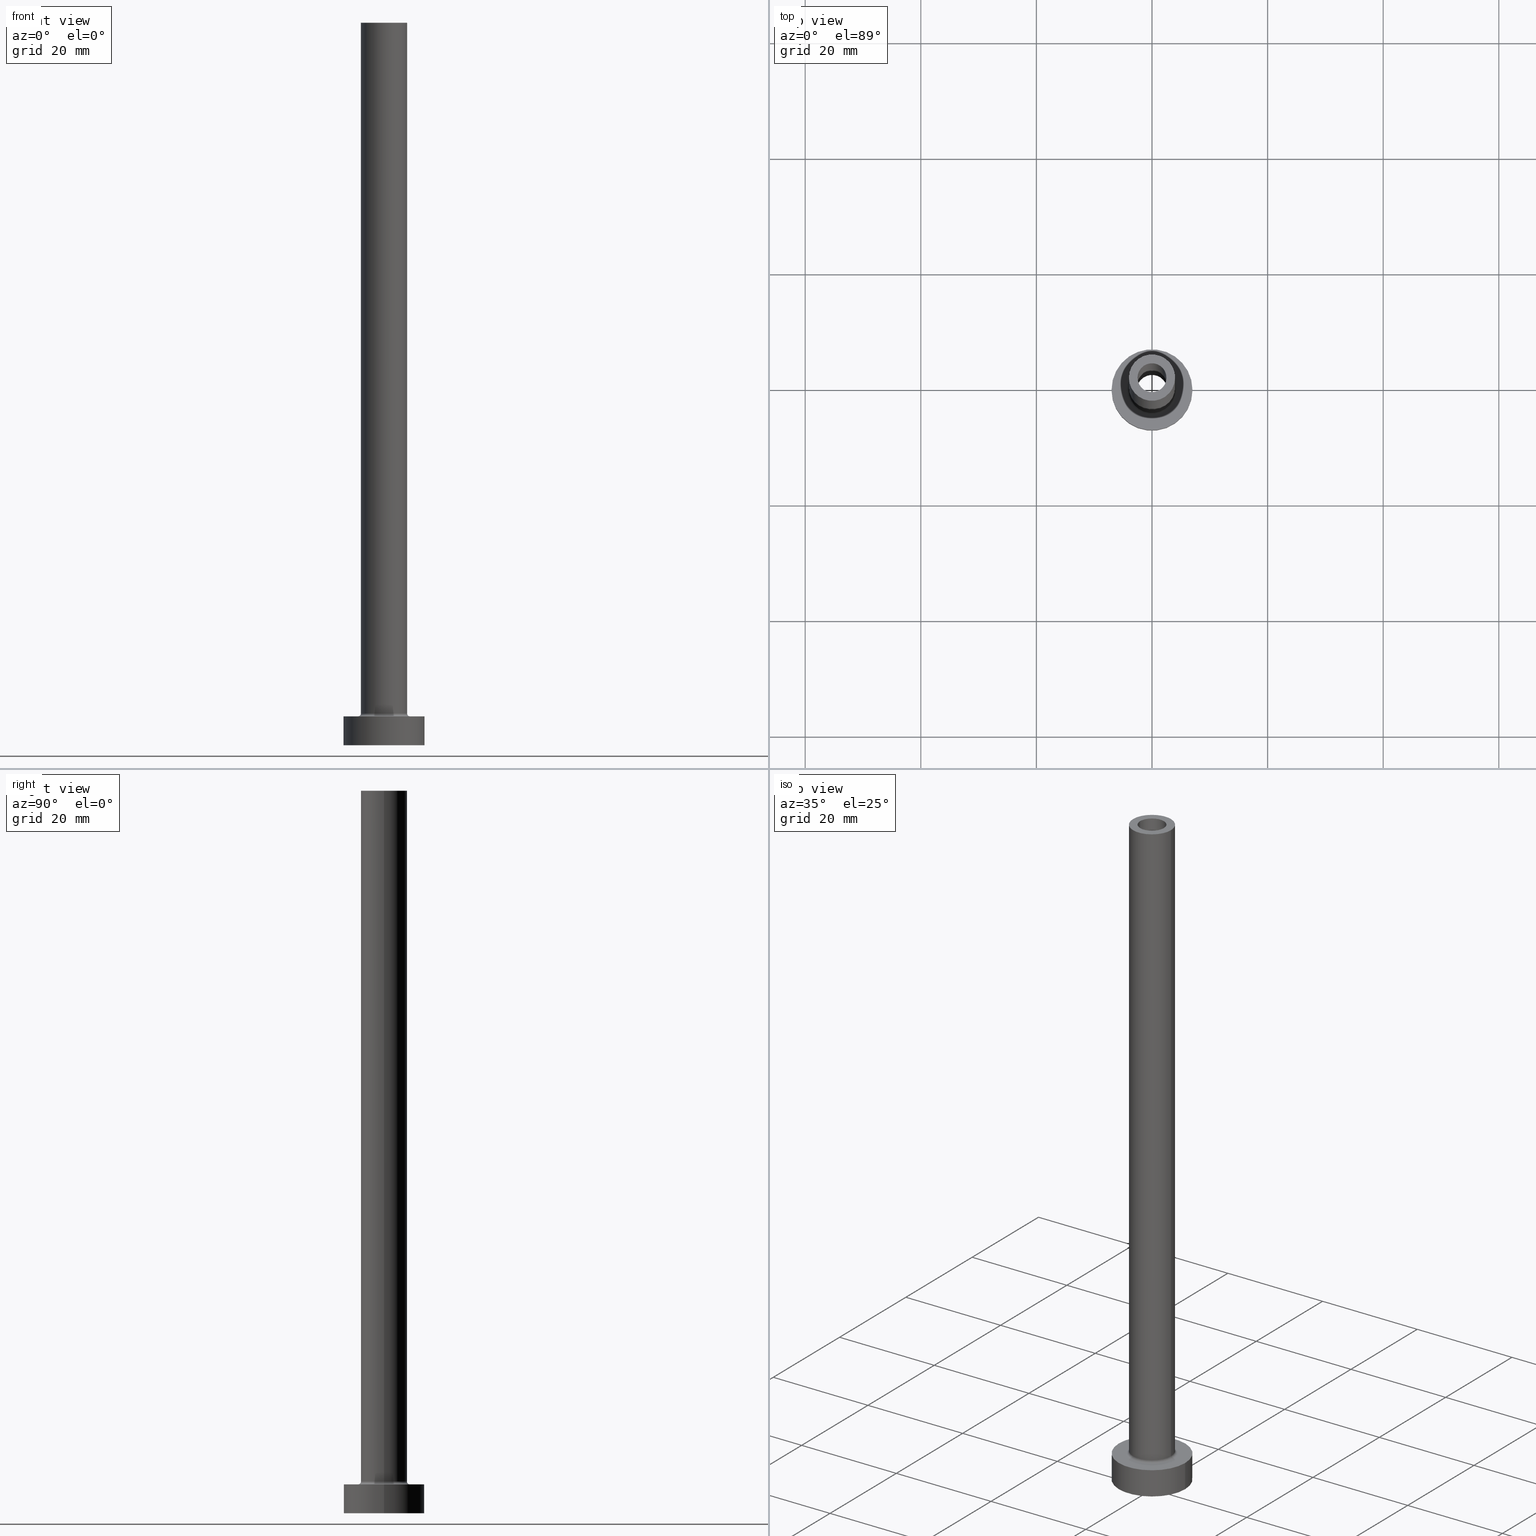
[diagram: canonical four-view strip — front | top / right | iso, engineering-drawing reading convention]
A machine part, canonical four-view strip (front | top / right | iso — engineering-drawing reading convention). The complete STEP part file that produces these views, byte-faithful:
ISO-10303-21;
HEADER;
FILE_DESCRIPTION (( 'STEP AP203' ),
    '1' );
FILE_NAME ('b917.STEP',
    '2023-02-13T10:13:58',
    ( '' ),
    ( '' ),
    'SwSTEP 2.0',
    'SolidWorks 2019',
    '' );
FILE_SCHEMA (( 'CONFIG_CONTROL_DESIGN' ));
ENDSEC;

DATA;
#1 = CC_DESIGN_DATE_AND_TIME_ASSIGNMENT ( #72, #384, ( #71 ) ) ;
#2 = DIRECTION ( 'NONE',  ( 1.000000000000000000, 0.000000000000000000, -0.000000000000000000 ) ) ;
#3 = VECTOR ( 'NONE', #244, 1000.000000000000000 ) ;
#4 = DIRECTION ( 'NONE',  ( 1.000000000000000000, 0.000000000000000000, 0.000000000000000000 ) ) ;
#5 = ORIENTED_EDGE ( 'NONE', *, *, #336, .T. ) ;
#6 = LINE ( 'NONE', #282, #92 ) ;
#7 = ORIENTED_EDGE ( 'NONE', *, *, #80, .T. ) ;
#8 = DIRECTION ( 'NONE',  ( 0.000000000000000000, 0.000000000000000000, -1.000000000000000000 ) ) ;
#9 = ORIENTED_EDGE ( 'NONE', *, *, #172, .T. ) ;
#10 = PRODUCT_RELATED_PRODUCT_CATEGORY ( 'detail', '', ( #132 ) ) ;
#11 = CIRCLE ( 'NONE', #403, 2.500000000000000000 ) ;
#12 = DIRECTION ( 'NONE',  ( -1.000000000000000000, 1.224646799147351482E-16, 0.000000000000000000 ) ) ;
#13 = AXIS2_PLACEMENT_3D ( 'NONE', #165, #379, #161 ) ;
#14 = ORIENTED_EDGE ( 'NONE', *, *, #271, .T. ) ;
#15 = CC_DESIGN_PERSON_AND_ORGANIZATION_ASSIGNMENT ( #369, #56, ( #113 ) ) ;
#16 = FACE_OUTER_BOUND ( 'NONE', #337, .T. ) ;
#17 = ORIENTED_EDGE ( 'NONE', *, *, #254, .F. ) ;
#18 = PERSON_AND_ORGANIZATION ( #457, #243 ) ;
#19 = DIRECTION ( 'NONE',  ( 0.000000000000000000, 0.000000000000000000, -1.000000000000000000 ) ) ;
#20 = CIRCLE ( 'NONE', #105, 2.649999999999999911 ) ;
#21 = FACE_OUTER_BOUND ( 'NONE', #449, .T. ) ;
#22 = LOCAL_TIME ( 11, 13, 58.00000000000000000, #301 ) ;
#23 =( NAMED_UNIT ( * ) PLANE_ANGLE_UNIT ( ) SI_UNIT ( $, .RADIAN. ) );
#24 = ORIENTED_EDGE ( 'NONE', *, *, #445, .F. ) ;
#25 = ADVANCED_FACE ( 'NONE', ( #262 ), #299, .T. ) ;
#26 = CARTESIAN_POINT ( 'NONE',  ( 0.000000000000000000, 0.000000000000000000, 80.00000000000000000 ) ) ;
#27 = PERSON_AND_ORGANIZATION ( #457, #243 ) ;
#28 = DIRECTION ( 'NONE',  ( 0.000000000000000000, 0.000000000000000000, -1.000000000000000000 ) ) ;
#29 = AXIS2_PLACEMENT_3D ( 'NONE', #269, #101, #169 ) ;
#30 = CIRCLE ( 'NONE', #304, 2.500000000000000000 ) ;
#31 = EDGE_CURVE ( 'NONE', #332, #444, #306, .T. ) ;
#32 = DIRECTION ( 'NONE',  ( 1.000000000000000000, 0.000000000000000000, 0.000000000000000000 ) ) ;
#33 = CARTESIAN_POINT ( 'NONE',  ( 0.000000000000000000, 0.000000000000000000, 125.0000000000000000 ) ) ;
#34 = COORDINATED_UNIVERSAL_TIME_OFFSET ( 1, 0, .AHEAD. ) ;
#35 = DIRECTION ( 'NONE',  ( 1.000000000000000000, 0.000000000000000000, 0.000000000000000000 ) ) ;
#36 = ADVANCED_FACE ( 'NONE', ( #21 ), #163, .T. ) ;
#37 = AXIS2_PLACEMENT_3D ( 'NONE', #33, #355, #35 ) ;
#38 = DATE_AND_TIME ( #416, #404 ) ;
#39 = DIRECTION ( 'NONE',  ( 1.000000000000000000, 0.000000000000000000, 0.000000000000000000 ) ) ;
#40 = DIRECTION ( 'NONE',  ( 1.000000000000000000, 0.000000000000000000, 0.000000000000000000 ) ) ;
#41 = FACE_BOUND ( 'NONE', #124, .T. ) ;
#42 = VERTEX_POINT ( 'NONE', #103 ) ;
#43 = AXIS2_PLACEMENT_3D ( 'NONE', #455, #207, #40 ) ;
#44 = CARTESIAN_POINT ( 'NONE',  ( 0.000000000000000000, 0.000000000000000000, 87.49533188057741029 ) ) ;
#45 = EDGE_CURVE ( 'NONE', #158, #402, #223, .T. ) ;
#46 = ORIENTED_EDGE ( 'NONE', *, *, #460, .T. ) ;
#47 = CYLINDRICAL_SURFACE ( 'NONE', #458, 2.649999999999999911 ) ;
#48 = ORIENTED_EDGE ( 'NONE', *, *, #305, .F. ) ;
#49 = CARTESIAN_POINT ( 'NONE',  ( -2.649999999999999911, 0.000000000000000000, 80.00000000000000000 ) ) ;
#50 = ORIENTED_EDGE ( 'NONE', *, *, #172, .F. ) ;
#51 = ADVANCED_FACE ( 'NONE', ( #265 ), #96, .T. ) ;
#52 = CIRCLE ( 'NONE', #345, 7.000000000000000000 ) ;
#53 = CARTESIAN_POINT ( 'NONE',  ( 0.000000000000000000, 0.000000000000000000, 125.0000000000000000 ) ) ;
#54 =( GEOMETRIC_REPRESENTATION_CONTEXT ( 3 ) GLOBAL_UNCERTAINTY_ASSIGNED_CONTEXT ( ( #320 ) ) GLOBAL_UNIT_ASSIGNED_CONTEXT ( ( #376, #23, #406 ) ) REPRESENTATION_CONTEXT ( 'NONE', 'WORKASPACE' ) );
#55 = ORIENTED_EDGE ( 'NONE', *, *, #143, .T. ) ;
#56 = PERSON_AND_ORGANIZATION_ROLE ( 'design_supplier' ) ;
#57 = ORIENTED_EDGE ( 'NONE', *, *, #240, .F. ) ;
#58 = PERSON_AND_ORGANIZATION ( #457, #243 ) ;
#59 = CARTESIAN_POINT ( 'NONE',  ( -7.000000000000000000, 0.000000000000000000, 5.000000000000000000 ) ) ;
#60 = DATE_AND_TIME ( #100, #22 ) ;
#61 = CIRCLE ( 'NONE', #367, 2.500000000000000000 ) ;
#62 = EDGE_CURVE ( 'NONE', #158, #221, #188, .T. ) ;
#63 = ORIENTED_EDGE ( 'NONE', *, *, #275, .F. ) ;
#64 = CYLINDRICAL_SURFACE ( 'NONE', #346, 2.500000000000000000 ) ;
#65 = EDGE_LOOP ( 'NONE', ( #88, #179, #438, #370 ) ) ;
#66 = APPROVAL_DATE_TIME ( #446, #148 ) ;
#67 = ORIENTED_EDGE ( 'NONE', *, *, #275, .T. ) ;
#68 = EDGE_CURVE ( 'NONE', #248, #362, #20, .T. ) ;
#69 = DIRECTION ( 'NONE',  ( 1.000000000000000000, 0.000000000000000000, 0.000000000000000000 ) ) ;
#70 = CIRCLE ( 'NONE', #412, 2.649999999999999911 ) ;
#71 = SECURITY_CLASSIFICATION ( '', '', #192 ) ;
#72 = DATE_AND_TIME ( #441, #83 ) ;
#73 = FACE_OUTER_BOUND ( 'NONE', #65, .T. ) ;
#74 = CARTESIAN_POINT ( 'NONE',  ( 7.000000000000000000, 8.572527594031473190E-16, 5.000000000000000000 ) ) ;
#75 = DIRECTION ( 'NONE',  ( 0.000000000000000000, 0.000000000000000000, 1.000000000000000000 ) ) ;
#76 = AXIS2_PLACEMENT_3D ( 'NONE', #53, #190, #331 ) ;
#77 = DIRECTION ( 'NONE',  ( -0.000000000000000000, -0.000000000000000000, -1.000000000000000000 ) ) ;
#78 = FACE_OUTER_BOUND ( 'NONE', #90, .T. ) ;
#79 = VERTEX_POINT ( 'NONE', #233 ) ;
#80 = EDGE_CURVE ( 'NONE', #260, #79, #432, .T. ) ;
#81 = DIRECTION ( 'NONE',  ( 1.000000000000000000, 0.000000000000000000, 0.000000000000000000 ) ) ;
#82 = ORIENTED_EDGE ( 'NONE', *, *, #271, .F. ) ;
#83 = LOCAL_TIME ( 11, 13, 58.00000000000000000, #293 ) ;
#84 = PLANE ( 'NONE',  #76 ) ;
#85 = ORIENTED_EDGE ( 'NONE', *, *, #240, .T. ) ;
#86 = DIRECTION ( 'NONE',  ( 0.000000000000000000, 0.000000000000000000, -1.000000000000000000 ) ) ;
#87 = EDGE_CURVE ( 'NONE', #290, #332, #456, .T. ) ;
#88 = ORIENTED_EDGE ( 'NONE', *, *, #343, .F. ) ;
#89 = DIRECTION ( 'NONE',  ( 1.000000000000000000, 0.000000000000000000, -0.000000000000000000 ) ) ;
#90 = EDGE_LOOP ( 'NONE', ( #17, #93, #24, #364 ) ) ;
#91 = PERSON_AND_ORGANIZATION ( #457, #243 ) ;
#92 = VECTOR ( 'NONE', #394, 1000.000000000000000 ) ;
#93 = ORIENTED_EDGE ( 'NONE', *, *, #343, .T. ) ;
#94 = FACE_OUTER_BOUND ( 'NONE', #360, .T. ) ;
#95 = LINE ( 'NONE', #227, #3 ) ;
#96 = CYLINDRICAL_SURFACE ( 'NONE', #450, 4.000000000000000000 ) ;
#97 = CIRCLE ( 'NONE', #386, 0.5000000000000004441 ) ;
#98 = DIRECTION ( 'NONE',  ( -0.000000000000000000, -0.000000000000000000, -1.000000000000000000 ) ) ;
#99 = CC_DESIGN_APPROVAL ( #300, ( #71 ) ) ;
#100 = CALENDAR_DATE ( 2023, 13, 2 ) ;
#101 = DIRECTION ( 'NONE',  ( 0.000000000000000000, 0.000000000000000000, 1.000000000000000000 ) ) ;
#102 = CC_DESIGN_PERSON_AND_ORGANIZATION_ASSIGNMENT ( #203, #256, ( #113 ) ) ;
#103 = CARTESIAN_POINT ( 'NONE',  ( -2.649999999999999911, 0.000000000000000000, 0.000000000000000000 ) ) ;
#104 = DIRECTION ( 'NONE',  ( 1.000000000000000000, 0.000000000000000000, 0.000000000000000000 ) ) ;
#105 = AXIS2_PLACEMENT_3D ( 'NONE', #26, #166, #137 ) ;
#106 = TOROIDAL_SURFACE ( 'NONE', #281, 4.500000000000000888, 0.5000000000000000000 ) ;
#107 = DIRECTION ( 'NONE',  ( 0.000000000000000000, 0.000000000000000000, -1.000000000000000000 ) ) ;
#108 = SHAPE_DEFINITION_REPRESENTATION ( #436, #433 ) ;
#109 = EDGE_CURVE ( 'NONE', #187, #79, #381, .T. ) ;
#110 = CARTESIAN_POINT ( 'NONE',  ( 0.000000000000000000, 0.000000000000000000, 5.000000000000000000 ) ) ;
#111 = CARTESIAN_POINT ( 'NONE',  ( 2.500000000000000000, 3.061616997868382648E-16, 125.0000000000000000 ) ) ;
#112 = CIRCLE ( 'NONE', #37, 4.000000000000000000 ) ;
#113 = PRODUCT_DEFINITION_FORMATION_WITH_SPECIFIED_SOURCE ( 'LIBOVOLN�', '', #132, .NOT_KNOWN. ) ;
#114 = FACE_OUTER_BOUND ( 'NONE', #185, .T. ) ;
#115 = DIRECTION ( 'NONE',  ( -0.000000000000000000, -0.000000000000000000, -1.000000000000000000 ) ) ;
#116 = EDGE_LOOP ( 'NONE', ( #255, #373 ) ) ;
#117 = CARTESIAN_POINT ( 'NONE',  ( 0.000000000000000000, 0.000000000000000000, 0.000000000000000000 ) ) ;
#118 = VERTEX_POINT ( 'NONE', #162 ) ;
#119 = CIRCLE ( 'NONE', #418, 2.649999999999999911 ) ;
#120 = EDGE_CURVE ( 'NONE', #248, #428, #95, .T. ) ;
#121 = CARTESIAN_POINT ( 'NONE',  ( 4.500000000000000888, 0.000000000000000000, 5.000000000000002665 ) ) ;
#122 = EDGE_LOOP ( 'NONE', ( #191, #395, #175, #342 ) ) ;
#123 = CARTESIAN_POINT ( 'NONE',  ( 0.000000000000000000, 0.000000000000000000, 80.00000000000000000 ) ) ;
#124 = EDGE_LOOP ( 'NONE', ( #85, #7 ) ) ;
#125 = CARTESIAN_POINT ( 'NONE',  ( 0.000000000000000000, 0.000000000000000000, 5.000000000000000000 ) ) ;
#126 = ORIENTED_EDGE ( 'NONE', *, *, #313, .F. ) ;
#127 = DATE_AND_TIME ( #130, #250 ) ;
#128 = ORIENTED_EDGE ( 'NONE', *, *, #405, .T. ) ;
#129 = ADVANCED_FACE ( 'NONE', ( #73 ), #273, .F. ) ;
#130 = CALENDAR_DATE ( 2023, 13, 2 ) ;
#131 = ORIENTED_EDGE ( 'NONE', *, *, #87, .F. ) ;
#132 = PRODUCT ( 'b917', 'b917', '', ( #401 ) ) ;
#133 = ORIENTED_EDGE ( 'NONE', *, *, #68, .T. ) ;
#134 = CARTESIAN_POINT ( 'NONE',  ( 0.000000000000000000, 0.000000000000000000, 125.0000000000000000 ) ) ;
#135 = APPROVAL ( #451, 'NEUR�EN�' ) ;
#136 = VECTOR ( 'NONE', #279, 1000.000000000000000 ) ;
#137 = DIRECTION ( 'NONE',  ( 1.000000000000000000, 0.000000000000000000, 0.000000000000000000 ) ) ;
#138 = DIRECTION ( 'NONE',  ( 0.000000000000000000, 0.000000000000000000, 1.000000000000000000 ) ) ;
#139 = LINE ( 'NONE', #421, #393 ) ;
#140 = CARTESIAN_POINT ( 'NONE',  ( -4.000000000000000000, 0.000000000000000000, 5.500000000000005329 ) ) ;
#141 = AXIS2_PLACEMENT_3D ( 'NONE', #277, #347, #171 ) ;
#142 = APPROVAL_PERSON_ORGANIZATION ( #352, #300, #276 ) ;
#143 = EDGE_CURVE ( 'NONE', #160, #402, #242, .T. ) ;
#144 = CARTESIAN_POINT ( 'NONE',  ( 0.000000000000000000, 0.000000000000000000, 5.000000000000000000 ) ) ;
#145 = DIRECTION ( 'NONE',  ( 0.000000000000000000, 0.000000000000000000, 1.000000000000000000 ) ) ;
#146 = DESIGN_CONTEXT ( 'detailed design', #231, 'design' ) ;
#147 = CARTESIAN_POINT ( 'NONE',  ( 0.000000000000000000, 0.000000000000000000, 5.000000000000000000 ) ) ;
#148 = APPROVAL ( #414, 'NEUR�EN�' ) ;
#149 = FACE_OUTER_BOUND ( 'NONE', #116, .T. ) ;
#150 = ORIENTED_EDGE ( 'NONE', *, *, #206, .T. ) ;
#151 = CARTESIAN_POINT ( 'NONE',  ( 2.649999999999999911, 3.245314017740485962E-16, 0.000000000000000000 ) ) ;
#152 = ORIENTED_EDGE ( 'NONE', *, *, #305, .T. ) ;
#153 = FACE_BOUND ( 'NONE', #219, .T. ) ;
#154 = ORIENTED_EDGE ( 'NONE', *, *, #419, .T. ) ;
#155 = CIRCLE ( 'NONE', #141, 4.000000000000000000 ) ;
#156 = CIRCLE ( 'NONE', #311, 2.649999999999999911 ) ;
#157 = CARTESIAN_POINT ( 'NONE',  ( 0.000000000000000000, 0.000000000000000000, 0.000000000000000000 ) ) ;
#158 = VERTEX_POINT ( 'NONE', #208 ) ;
#159 = FACE_OUTER_BOUND ( 'NONE', #430, .T. ) ;
#160 = VERTEX_POINT ( 'NONE', #388 ) ;
#161 = DIRECTION ( 'NONE',  ( 1.000000000000000000, 0.000000000000000000, 0.000000000000000000 ) ) ;
#162 = CARTESIAN_POINT ( 'NONE',  ( -4.000000000000000000, 0.000000000000000000, 125.0000000000000000 ) ) ;
#163 = CYLINDRICAL_SURFACE ( 'NONE', #329, 7.000000000000000000 ) ;
#164 = ORIENTED_EDGE ( 'NONE', *, *, #62, .T. ) ;
#165 = CARTESIAN_POINT ( 'NONE',  ( 0.000000000000000000, 0.000000000000000000, 0.000000000000000000 ) ) ;
#166 = DIRECTION ( 'NONE',  ( 0.000000000000000000, 0.000000000000000000, 1.000000000000000000 ) ) ;
#167 = APPLICATION_PROTOCOL_DEFINITION ( 'international standard', 'config_control_design', 1994, #194 ) ;
#168 = VECTOR ( 'NONE', #77, 1000.000000000000000 ) ;
#169 = DIRECTION ( 'NONE',  ( 1.000000000000000000, 0.000000000000000000, 0.000000000000000000 ) ) ;
#170 = CARTESIAN_POINT ( 'NONE',  ( 0.000000000000000000, 0.000000000000000000, 125.0000000000000000 ) ) ;
#171 = DIRECTION ( 'NONE',  ( 1.000000000000000000, 0.000000000000000000, 0.000000000000000000 ) ) ;
#172 = EDGE_CURVE ( 'NONE', #332, #290, #351, .T. ) ;
#173 = LINE ( 'NONE', #312, #136 ) ;
#174 = DIRECTION ( 'NONE',  ( 0.000000000000000000, 0.000000000000000000, 1.000000000000000000 ) ) ;
#175 = ORIENTED_EDGE ( 'NONE', *, *, #201, .T. ) ;
#176 = CC_DESIGN_DATE_AND_TIME_ASSIGNMENT ( #127, #268, ( #210 ) ) ;
#177 = DIRECTION ( 'NONE',  ( -0.000000000000000000, -0.000000000000000000, -1.000000000000000000 ) ) ;
#178 = FACE_OUTER_BOUND ( 'NONE', #257, .T. ) ;
#179 = ORIENTED_EDGE ( 'NONE', *, *, #62, .F. ) ;
#180 = VECTOR ( 'NONE', #426, 1000.000000000000000 ) ;
#181 = LOCAL_TIME ( 11, 13, 58.00000000000000000, #340 ) ;
#182 = FACE_OUTER_BOUND ( 'NONE', #328, .T. ) ;
#183 = ORIENTED_EDGE ( 'NONE', *, *, #263, .F. ) ;
#184 = DIRECTION ( 'NONE',  ( -1.000000000000000000, 0.000000000000000000, 0.000000000000000000 ) ) ;
#185 = EDGE_LOOP ( 'NONE', ( #183, #50, #202, #150 ) ) ;
#186 = DIRECTION ( 'NONE',  ( 1.000000000000000000, 0.000000000000000000, 0.000000000000000000 ) ) ;
#187 = VERTEX_POINT ( 'NONE', #461 ) ;
#188 = CIRCLE ( 'NONE', #215, 4.000000000000000000 ) ;
#189 = AXIS2_PLACEMENT_3D ( 'NONE', #157, #289, #247 ) ;
#190 = DIRECTION ( 'NONE',  ( 0.000000000000000000, 0.000000000000000000, 1.000000000000000000 ) ) ;
#191 = ORIENTED_EDGE ( 'NONE', *, *, #419, .F. ) ;
#192 = SECURITY_CLASSIFICATION_LEVEL ( 'unclassified' ) ;
#193 = CARTESIAN_POINT ( 'NONE',  ( 0.000000000000000000, 0.000000000000000000, 5.000000000000000000 ) ) ;
#194 = APPLICATION_CONTEXT ( 'configuration controlled 3d designs of mechanical parts and assemblies' ) ;
#195 = DIRECTION ( 'NONE',  ( 0.000000000000000000, 0.000000000000000000, 1.000000000000000000 ) ) ;
#196 = ORIENTED_EDGE ( 'NONE', *, *, #120, .T. ) ;
#197 = VECTOR ( 'NONE', #452, 1000.000000000000000 ) ;
#198 = AXIS2_PLACEMENT_3D ( 'NONE', #324, #8, #245 ) ;
#199 = APPROVAL_ROLE ( '' ) ;
#200 = ORIENTED_EDGE ( 'NONE', *, *, #405, .F. ) ;
#201 = EDGE_CURVE ( 'NONE', #118, #221, #173, .T. ) ;
#202 = ORIENTED_EDGE ( 'NONE', *, *, #31, .T. ) ;
#203 = PERSON_AND_ORGANIZATION ( #457, #243 ) ;
#204 = DIRECTION ( 'NONE',  ( -1.000000000000000000, 0.000000000000000000, 0.000000000000000000 ) ) ;
#205 = CARTESIAN_POINT ( 'NONE',  ( 0.000000000000000000, 0.000000000000000000, 80.00000000000000000 ) ) ;
#206 = EDGE_CURVE ( 'NONE', #444, #440, #52, .T. ) ;
#207 = DIRECTION ( 'NONE',  ( 0.000000000000000000, 0.000000000000000000, 1.000000000000000000 ) ) ;
#208 = CARTESIAN_POINT ( 'NONE',  ( 4.000000000000000000, 4.898587196589412829E-16, 5.500000000000005329 ) ) ;
#209 = AXIS2_PLACEMENT_3D ( 'NONE', #409, #417, #204 ) ;
#210 = PRODUCT_DEFINITION ( 'NEZN�M�', '', #113, #146 ) ;
#211 = DIRECTION ( 'NONE',  ( 1.000000000000000000, 0.000000000000000000, 0.000000000000000000 ) ) ;
#212 = CARTESIAN_POINT ( 'NONE',  ( -7.000000000000000000, 0.000000000000000000, 5.000000000000000000 ) ) ;
#213 = CARTESIAN_POINT ( 'NONE',  ( -4.500000000000000888, 5.510910596163089556E-16, 5.500000000000005329 ) ) ;
#214 = ORIENTED_EDGE ( 'NONE', *, *, #222, .F. ) ;
#215 = AXIS2_PLACEMENT_3D ( 'NONE', #377, #442, #380 ) ;
#216 = CARTESIAN_POINT ( 'NONE',  ( 0.000000000000000000, 0.000000000000000000, 5.500000000000005329 ) ) ;
#217 = ORIENTED_EDGE ( 'NONE', *, *, #235, .T. ) ;
#218 = CARTESIAN_POINT ( 'NONE',  ( 0.000000000000000000, 0.000000000000000000, 125.0000000000000000 ) ) ;
#219 = EDGE_LOOP ( 'NONE', ( #285, #82 ) ) ;
#220 = DIRECTION ( 'NONE',  ( 1.000000000000000000, 0.000000000000000000, 0.000000000000000000 ) ) ;
#221 = VERTEX_POINT ( 'NONE', #140 ) ;
#222 = EDGE_CURVE ( 'NONE', #435, #118, #249, .T. ) ;
#223 = CIRCLE ( 'NONE', #295, 0.5000000000000004441 ) ;
#224 = CIRCLE ( 'NONE', #330, 4.500000000000000888 ) ;
#225 = CALENDAR_DATE ( 2023, 13, 2 ) ;
#226 = VERTEX_POINT ( 'NONE', #385 ) ;
#227 = CARTESIAN_POINT ( 'NONE',  ( 2.649999999999999911, 3.245314017740485962E-16, 87.49533188057741029 ) ) ;
#228 = ORIENTED_EDGE ( 'NONE', *, *, #109, .F. ) ;
#229 = AXIS2_PLACEMENT_3D ( 'NONE', #110, #239, #184 ) ;
#230 = DIRECTION ( 'NONE',  ( -1.000000000000000000, 0.000000000000000000, 0.000000000000000000 ) ) ;
#231 = APPLICATION_CONTEXT ( 'configuration controlled 3d designs of mechanical parts and assemblies' ) ;
#232 = PERSON_AND_ORGANIZATION_ROLE ( 'design_owner' ) ;
#233 = CARTESIAN_POINT ( 'NONE',  ( -2.500000000000000000, 0.000000000000000000, 80.00000000000000000 ) ) ;
#234 = DIRECTION ( 'NONE',  ( 1.000000000000000000, 0.000000000000000000, 0.000000000000000000 ) ) ;
#235 = EDGE_CURVE ( 'NONE', #118, #435, #112, .T. ) ;
#236 = AXIS2_PLACEMENT_3D ( 'NONE', #309, #237, #69 ) ;
#237 = DIRECTION ( 'NONE',  ( 0.000000000000000000, 0.000000000000000000, 1.000000000000000000 ) ) ;
#238 = DIRECTION ( 'NONE',  ( -0.000000000000000000, -0.000000000000000000, -1.000000000000000000 ) ) ;
#239 = DIRECTION ( 'NONE',  ( -0.000000000000000000, -0.000000000000000000, -1.000000000000000000 ) ) ;
#240 = EDGE_CURVE ( 'NONE', #79, #260, #61, .T. ) ;
#241 = CARTESIAN_POINT ( 'NONE',  ( 0.000000000000000000, 0.000000000000000000, 0.000000000000000000 ) ) ;
#242 = CIRCLE ( 'NONE', #258, 4.500000000000000888 ) ;
#243 = ORGANIZATION ( 'NEUR�EN�', 'NEUR�EN�', '' ) ;
#244 = DIRECTION ( 'NONE',  ( 0.000000000000000000, 0.000000000000000000, -1.000000000000000000 ) ) ;
#245 = DIRECTION ( 'NONE',  ( -1.000000000000000000, 0.000000000000000000, 0.000000000000000000 ) ) ;
#246 = ORIENTED_EDGE ( 'NONE', *, *, #68, .F. ) ;
#247 = DIRECTION ( 'NONE',  ( 1.000000000000000000, 0.000000000000000000, 0.000000000000000000 ) ) ;
#248 = VERTEX_POINT ( 'NONE', #354 ) ;
#249 = CIRCLE ( 'NONE', #318, 4.000000000000000000 ) ;
#250 = LOCAL_TIME ( 11, 13, 58.00000000000000000, #448 ) ;
#251 = DIRECTION ( 'NONE',  ( 0.000000000000000000, 0.000000000000000000, 1.000000000000000000 ) ) ;
#252 = ORIENTED_EDGE ( 'NONE', *, *, #313, .T. ) ;
#253 = FACE_OUTER_BOUND ( 'NONE', #325, .T. ) ;
#254 = EDGE_CURVE ( 'NONE', #221, #158, #155, .T. ) ;
#255 = ORIENTED_EDGE ( 'NONE', *, *, #206, .F. ) ;
#256 = PERSON_AND_ORGANIZATION_ROLE ( 'creator' ) ;
#257 = EDGE_LOOP ( 'NONE', ( #217, #341 ) ) ;
#258 = AXIS2_PLACEMENT_3D ( 'NONE', #147, #238, #32 ) ;
#259 = DIRECTION ( 'NONE',  ( 1.000000000000000000, 0.000000000000000000, 0.000000000000000000 ) ) ;
#260 = VERTEX_POINT ( 'NONE', #274 ) ;
#261 = CARTESIAN_POINT ( 'NONE',  ( 0.000000000000000000, 0.000000000000000000, 80.00000000000000000 ) ) ;
#262 = FACE_OUTER_BOUND ( 'NONE', #122, .T. ) ;
#263 = EDGE_CURVE ( 'NONE', #290, #440, #314, .T. ) ;
#264 = DIRECTION ( 'NONE',  ( 0.000000000000000000, 0.000000000000000000, -1.000000000000000000 ) ) ;
#265 = FACE_OUTER_BOUND ( 'NONE', #366, .T. ) ;
#266 = CLOSED_SHELL ( 'NONE', ( #356, #326, #371, #51, #36, #317, #297, #350, #25, #431, #129, #378, #410, #454 ) ) ;
#267 = AXIS2_PLACEMENT_3D ( 'NONE', #123, #399, #365 ) ;
#268 = DATE_TIME_ROLE ( 'creation_date' ) ;
#269 = CARTESIAN_POINT ( 'NONE',  ( 0.000000000000000000, 0.000000000000000000, 80.00000000000000000 ) ) ;
#270 = EDGE_LOOP ( 'NONE', ( #9, #286 ) ) ;
#271 = EDGE_CURVE ( 'NONE', #428, #42, #70, .T. ) ;
#272 = DIRECTION ( 'NONE',  ( 1.000000000000000000, 0.000000000000000000, 0.000000000000000000 ) ) ;
#273 = TOROIDAL_SURFACE ( 'NONE', #43, 4.500000000000000888, 0.5000000000000000000 ) ;
#274 = CARTESIAN_POINT ( 'NONE',  ( 2.500000000000000000, 3.061616997868382648E-16, 80.00000000000000000 ) ) ;
#275 = EDGE_CURVE ( 'NONE', #226, #187, #11, .T. ) ;
#276 = APPROVAL_ROLE ( '' ) ;
#277 = CARTESIAN_POINT ( 'NONE',  ( 0.000000000000000000, 0.000000000000000000, 5.500000000000005329 ) ) ;
#278 = CARTESIAN_POINT ( 'NONE',  ( 0.000000000000000000, 0.000000000000000000, 0.000000000000000000 ) ) ;
#279 = DIRECTION ( 'NONE',  ( -0.000000000000000000, -0.000000000000000000, -1.000000000000000000 ) ) ;
#280 = AXIS2_PLACEMENT_3D ( 'NONE', #390, #251, #89 ) ;
#281 = AXIS2_PLACEMENT_3D ( 'NONE', #216, #396, #220 ) ;
#282 = CARTESIAN_POINT ( 'NONE',  ( 4.000000000000000000, 4.898587196589412829E-16, 125.0000000000000000 ) ) ;
#283 = EDGE_LOOP ( 'NONE', ( #294, #55 ) ) ;
#284 = FACE_BOUND ( 'NONE', #358, .T. ) ;
#285 = ORIENTED_EDGE ( 'NONE', *, *, #336, .F. ) ;
#286 = ORIENTED_EDGE ( 'NONE', *, *, #87, .T. ) ;
#287 = AXIS2_PLACEMENT_3D ( 'NONE', #44, #429, #327 ) ;
#288 = CC_DESIGN_PERSON_AND_ORGANIZATION_ASSIGNMENT ( #27, #232, ( #132 ) ) ;
#289 = DIRECTION ( 'NONE',  ( 0.000000000000000000, 0.000000000000000000, 1.000000000000000000 ) ) ;
#290 = VERTEX_POINT ( 'NONE', #74 ) ;
#291 = CARTESIAN_POINT ( 'NONE',  ( 4.000000000000000000, 4.898587196589412829E-16, 125.0000000000000000 ) ) ;
#292 = ORIENTED_EDGE ( 'NONE', *, *, #80, .F. ) ;
#293 = COORDINATED_UNIVERSAL_TIME_OFFSET ( 1, 0, .AHEAD. ) ;
#294 = ORIENTED_EDGE ( 'NONE', *, *, #445, .T. ) ;
#295 = AXIS2_PLACEMENT_3D ( 'NONE', #415, #447, #28 ) ;
#296 = DIRECTION ( 'NONE',  ( -1.000000000000000000, 0.000000000000000000, 0.000000000000000000 ) ) ;
#297 = ADVANCED_FACE ( 'NONE', ( #307, #453 ), #315, .T. ) ;
#298 = APPLICATION_PROTOCOL_DEFINITION ( 'international standard', 'config_control_design', 1994, #231 ) ;
#299 = CYLINDRICAL_SURFACE ( 'NONE', #209, 4.000000000000000000 ) ;
#300 = APPROVAL ( #308, 'NEUR�EN�' ) ;
#301 = COORDINATED_UNIVERSAL_TIME_OFFSET ( 1, 0, .AHEAD. ) ;
#302 = ORIENTED_EDGE ( 'NONE', *, *, #120, .F. ) ;
#303 = AXIS2_PLACEMENT_3D ( 'NONE', #193, #138, #234 ) ;
#304 = AXIS2_PLACEMENT_3D ( 'NONE', #218, #363, #186 ) ;
#305 = EDGE_CURVE ( 'NONE', #362, #42, #139, .T. ) ;
#306 = LINE ( 'NONE', #59, #197 ) ;
#307 = FACE_BOUND ( 'NONE', #283, .T. ) ;
#308 = APPROVAL_STATUS ( 'not_yet_approved' ) ;
#309 = CARTESIAN_POINT ( 'NONE',  ( 0.000000000000000000, 0.000000000000000000, 5.000000000000000000 ) ) ;
#310 = AXIS2_PLACEMENT_3D ( 'NONE', #144, #424, #2 ) ;
#311 = AXIS2_PLACEMENT_3D ( 'NONE', #261, #195, #259 ) ;
#312 = CARTESIAN_POINT ( 'NONE',  ( -4.000000000000000000, 0.000000000000000000, 125.0000000000000000 ) ) ;
#313 = EDGE_CURVE ( 'NONE', #226, #260, #423, .T. ) ;
#314 = LINE ( 'NONE', #459, #168 ) ;
#315 = PLANE ( 'NONE',  #310 ) ;
#316 = DIRECTION ( 'NONE',  ( -0.000000000000000000, -0.000000000000000000, -1.000000000000000000 ) ) ;
#317 = ADVANCED_FACE ( 'NONE', ( #114 ), #382, .T. ) ;
#318 = AXIS2_PLACEMENT_3D ( 'NONE', #349, #145, #383 ) ;
#319 = ORIENTED_EDGE ( 'NONE', *, *, #109, .T. ) ;
#320 = UNCERTAINTY_MEASURE_WITH_UNIT (LENGTH_MEASURE( 1.000000000000000082E-05 ), #376, 'distance_accuracy_value', 'NONE');
#321 = MANIFOLD_SOLID_BREP ( 'Odebrat vysunut�m4', #266 ) ;
#322 = CYLINDRICAL_SURFACE ( 'NONE', #287, 2.649999999999999911 ) ;
#323 = ORIENTED_EDGE ( 'NONE', *, *, #397, .T. ) ;
#324 = CARTESIAN_POINT ( 'NONE',  ( 0.000000000000000000, 0.000000000000000000, 125.0000000000000000 ) ) ;
#325 = EDGE_LOOP ( 'NONE', ( #46, #196, #14, #48 ) ) ;
#326 = ADVANCED_FACE ( 'NONE', ( #253 ), #322, .F. ) ;
#327 = DIRECTION ( 'NONE',  ( -1.000000000000000000, 0.000000000000000000, 0.000000000000000000 ) ) ;
#328 = EDGE_LOOP ( 'NONE', ( #302, #133, #152, #5 ) ) ;
#329 = AXIS2_PLACEMENT_3D ( 'NONE', #344, #375, #296 ) ;
#330 = AXIS2_PLACEMENT_3D ( 'NONE', #125, #316, #4 ) ;
#331 = DIRECTION ( 'NONE',  ( 1.000000000000000000, 0.000000000000000000, -0.000000000000000000 ) ) ;
#332 = VERTEX_POINT ( 'NONE', #212 ) ;
#333 = PERSON_AND_ORGANIZATION_ROLE ( 'classification_officer' ) ;
#334 = CARTESIAN_POINT ( 'NONE',  ( -2.500000000000000000, 0.000000000000000000, 125.0000000000000000 ) ) ;
#335 = DIRECTION ( 'NONE',  ( -1.000000000000000000, 0.000000000000000000, 0.000000000000000000 ) ) ;
#336 = EDGE_CURVE ( 'NONE', #42, #428, #119, .T. ) ;
#337 = EDGE_LOOP ( 'NONE', ( #128, #252, #57, #228 ) ) ;
#338 = VECTOR ( 'NONE', #19, 1000.000000000000000 ) ;
#339 = CIRCLE ( 'NONE', #189, 7.000000000000000000 ) ;
#340 = COORDINATED_UNIVERSAL_TIME_OFFSET ( 1, 0, .AHEAD. ) ;
#341 = ORIENTED_EDGE ( 'NONE', *, *, #222, .T. ) ;
#342 = ORIENTED_EDGE ( 'NONE', *, *, #254, .T. ) ;
#343 = EDGE_CURVE ( 'NONE', #221, #160, #97, .T. ) ;
#344 = CARTESIAN_POINT ( 'NONE',  ( 0.000000000000000000, 0.000000000000000000, 5.000000000000000000 ) ) ;
#345 = AXIS2_PLACEMENT_3D ( 'NONE', #241, #348, #272 ) ;
#346 = AXIS2_PLACEMENT_3D ( 'NONE', #134, #264, #335 ) ;
#347 = DIRECTION ( 'NONE',  ( 0.000000000000000000, 0.000000000000000000, 1.000000000000000000 ) ) ;
#348 = DIRECTION ( 'NONE',  ( 0.000000000000000000, 0.000000000000000000, 1.000000000000000000 ) ) ;
#349 = CARTESIAN_POINT ( 'NONE',  ( 0.000000000000000000, 0.000000000000000000, 125.0000000000000000 ) ) ;
#350 = ADVANCED_FACE ( 'NONE', ( #153, #149 ), #359, .F. ) ;
#351 = CIRCLE ( 'NONE', #236, 7.000000000000000000 ) ;
#352 = PERSON_AND_ORGANIZATION ( #457, #243 ) ;
#353 = APPROVAL_PERSON_ORGANIZATION ( #408, #135, #374 ) ;
#354 = CARTESIAN_POINT ( 'NONE',  ( 2.649999999999999911, 3.245314017740485962E-16, 80.00000000000000000 ) ) ;
#355 = DIRECTION ( 'NONE',  ( 0.000000000000000000, 0.000000000000000000, 1.000000000000000000 ) ) ;
#356 = ADVANCED_FACE ( 'NONE', ( #16 ), #361, .F. ) ;
#357 = DIRECTION ( 'NONE',  ( 1.224646799147353207E-16, 1.000000000000000000, -0.000000000000000000 ) ) ;
#358 = EDGE_LOOP ( 'NONE', ( #200, #63 ) ) ;
#359 = PLANE ( 'NONE',  #280 ) ;
#360 = EDGE_LOOP ( 'NONE', ( #126, #67, #319, #292 ) ) ;
#361 = CYLINDRICAL_SURFACE ( 'NONE', #198, 2.500000000000000000 ) ;
#362 = VERTEX_POINT ( 'NONE', #49 ) ;
#363 = DIRECTION ( 'NONE',  ( 0.000000000000000000, 0.000000000000000000, 1.000000000000000000 ) ) ;
#364 = ORIENTED_EDGE ( 'NONE', *, *, #45, .F. ) ;
#365 = DIRECTION ( 'NONE',  ( 1.000000000000000000, 0.000000000000000000, -0.000000000000000000 ) ) ;
#366 = EDGE_LOOP ( 'NONE', ( #214, #154, #164, #398 ) ) ;
#367 = AXIS2_PLACEMENT_3D ( 'NONE', #205, #75, #211 ) ;
#368 = CC_DESIGN_SECURITY_CLASSIFICATION ( #71, ( #113 ) ) ;
#369 = PERSON_AND_ORGANIZATION ( #457, #243 ) ;
#370 = ORIENTED_EDGE ( 'NONE', *, *, #143, .F. ) ;
#371 = ADVANCED_FACE ( 'NONE', ( #78 ), #106, .F. ) ;
#372 = APPROVAL_DATE_TIME ( #60, #135 ) ;
#373 = ORIENTED_EDGE ( 'NONE', *, *, #397, .F. ) ;
#374 = APPROVAL_ROLE ( '' ) ;
#375 = DIRECTION ( 'NONE',  ( -0.000000000000000000, -0.000000000000000000, -1.000000000000000000 ) ) ;
#376 =( LENGTH_UNIT ( ) NAMED_UNIT ( * ) SI_UNIT ( .MILLI., .METRE. ) );
#377 = CARTESIAN_POINT ( 'NONE',  ( 0.000000000000000000, 0.000000000000000000, 5.500000000000005329 ) ) ;
#378 = ADVANCED_FACE ( 'NONE', ( #182 ), #47, .F. ) ;
#379 = DIRECTION ( 'NONE',  ( 0.000000000000000000, 0.000000000000000000, 1.000000000000000000 ) ) ;
#380 = DIRECTION ( 'NONE',  ( 1.000000000000000000, 0.000000000000000000, 0.000000000000000000 ) ) ;
#381 = LINE ( 'NONE', #334, #338 ) ;
#382 = CYLINDRICAL_SURFACE ( 'NONE', #229, 7.000000000000000000 ) ;
#383 = DIRECTION ( 'NONE',  ( 1.000000000000000000, 0.000000000000000000, 0.000000000000000000 ) ) ;
#384 = DATE_TIME_ROLE ( 'classification_date' ) ;
#385 = CARTESIAN_POINT ( 'NONE',  ( 2.500000000000000000, 3.061616997868382648E-16, 125.0000000000000000 ) ) ;
#386 = AXIS2_PLACEMENT_3D ( 'NONE', #213, #357, #12 ) ;
#387 = CC_DESIGN_APPROVAL ( #148, ( #113 ) ) ;
#388 = CARTESIAN_POINT ( 'NONE',  ( -4.500000000000000888, 5.510910596163088569E-16, 5.000000000000002665 ) ) ;
#389 = CC_DESIGN_PERSON_AND_ORGANIZATION_ASSIGNMENT ( #18, #333, ( #71 ) ) ;
#390 = CARTESIAN_POINT ( 'NONE',  ( 0.000000000000000000, 0.000000000000000000, 0.000000000000000000 ) ) ;
#391 = DIRECTION ( 'NONE',  ( -1.000000000000000000, 0.000000000000000000, 0.000000000000000000 ) ) ;
#392 = ORIENTED_EDGE ( 'NONE', *, *, #31, .F. ) ;
#393 = VECTOR ( 'NONE', #107, 1000.000000000000000 ) ;
#394 = DIRECTION ( 'NONE',  ( -0.000000000000000000, -0.000000000000000000, -1.000000000000000000 ) ) ;
#395 = ORIENTED_EDGE ( 'NONE', *, *, #235, .F. ) ;
#396 = DIRECTION ( 'NONE',  ( 0.000000000000000000, 0.000000000000000000, 1.000000000000000000 ) ) ;
#397 = EDGE_CURVE ( 'NONE', #440, #444, #339, .T. ) ;
#398 = ORIENTED_EDGE ( 'NONE', *, *, #201, .F. ) ;
#399 = DIRECTION ( 'NONE',  ( 0.000000000000000000, 0.000000000000000000, 1.000000000000000000 ) ) ;
#400 = ORIENTED_EDGE ( 'NONE', *, *, #460, .F. ) ;
#401 = MECHANICAL_CONTEXT ( 'NONE', #194, 'mechanical' ) ;
#402 = VERTEX_POINT ( 'NONE', #121 ) ;
#403 = AXIS2_PLACEMENT_3D ( 'NONE', #170, #174, #39 ) ;
#404 = LOCAL_TIME ( 11, 13, 58.00000000000000000, #34 ) ;
#405 = EDGE_CURVE ( 'NONE', #187, #226, #30, .T. ) ;
#406 =( NAMED_UNIT ( * ) SI_UNIT ( $, .STERADIAN. ) SOLID_ANGLE_UNIT ( ) );
#407 = ORIENTED_EDGE ( 'NONE', *, *, #263, .T. ) ;
#408 = PERSON_AND_ORGANIZATION ( #457, #243 ) ;
#409 = CARTESIAN_POINT ( 'NONE',  ( 0.000000000000000000, 0.000000000000000000, 125.0000000000000000 ) ) ;
#410 = ADVANCED_FACE ( 'NONE', ( #41, #159 ), #437, .F. ) ;
#411 = CARTESIAN_POINT ( 'NONE',  ( 0.000000000000000000, 0.000000000000000000, 125.0000000000000000 ) ) ;
#412 = AXIS2_PLACEMENT_3D ( 'NONE', #278, #177, #104 ) ;
#413 = CC_DESIGN_APPROVAL ( #135, ( #210 ) ) ;
#414 = APPROVAL_STATUS ( 'not_yet_approved' ) ;
#415 = CARTESIAN_POINT ( 'NONE',  ( 4.500000000000000888, 0.000000000000000000, 5.500000000000005329 ) ) ;
#416 = CALENDAR_DATE ( 2023, 13, 2 ) ;
#417 = DIRECTION ( 'NONE',  ( -0.000000000000000000, -0.000000000000000000, -1.000000000000000000 ) ) ;
#418 = AXIS2_PLACEMENT_3D ( 'NONE', #117, #115, #81 ) ;
#419 = EDGE_CURVE ( 'NONE', #435, #158, #6, .T. ) ;
#420 = APPROVAL_PERSON_ORGANIZATION ( #91, #148, #199 ) ;
#421 = CARTESIAN_POINT ( 'NONE',  ( -2.649999999999999911, 0.000000000000000000, 87.49533188057741029 ) ) ;
#422 = APPROVAL_DATE_TIME ( #38, #300 ) ;
#423 = LINE ( 'NONE', #111, #180 ) ;
#424 = DIRECTION ( 'NONE',  ( 0.000000000000000000, 0.000000000000000000, 1.000000000000000000 ) ) ;
#425 = CC_DESIGN_PERSON_AND_ORGANIZATION_ASSIGNMENT ( #58, #443, ( #210 ) ) ;
#426 = DIRECTION ( 'NONE',  ( 0.000000000000000000, 0.000000000000000000, -1.000000000000000000 ) ) ;
#427 = CARTESIAN_POINT ( 'NONE',  ( 7.000000000000000000, 8.572527594031473190E-16, 0.000000000000000000 ) ) ;
#428 = VERTEX_POINT ( 'NONE', #151 ) ;
#429 = DIRECTION ( 'NONE',  ( 0.000000000000000000, 0.000000000000000000, -1.000000000000000000 ) ) ;
#430 = EDGE_LOOP ( 'NONE', ( #400, #246 ) ) ;
#431 = ADVANCED_FACE ( 'NONE', ( #284, #178 ), #84, .T. ) ;
#432 = CIRCLE ( 'NONE', #29, 2.500000000000000000 ) ;
#433 = ADVANCED_BREP_SHAPE_REPRESENTATION ( 'b917', ( #321, #13 ), #54 ) ;
#434 = CARTESIAN_POINT ( 'NONE',  ( 0.000000000000000000, 0.000000000000000000, 87.49533188057741029 ) ) ;
#435 = VERTEX_POINT ( 'NONE', #291 ) ;
#436 = PRODUCT_DEFINITION_SHAPE ( 'NONE', 'NONE',  #210 ) ;
#437 = PLANE ( 'NONE',  #267 ) ;
#438 = ORIENTED_EDGE ( 'NONE', *, *, #45, .T. ) ;
#439 = CARTESIAN_POINT ( 'NONE',  ( -7.000000000000000000, 0.000000000000000000, 0.000000000000000000 ) ) ;
#440 = VERTEX_POINT ( 'NONE', #427 ) ;
#441 = CALENDAR_DATE ( 2023, 13, 2 ) ;
#442 = DIRECTION ( 'NONE',  ( 0.000000000000000000, 0.000000000000000000, 1.000000000000000000 ) ) ;
#443 = PERSON_AND_ORGANIZATION_ROLE ( 'creator' ) ;
#444 = VERTEX_POINT ( 'NONE', #439 ) ;
#445 = EDGE_CURVE ( 'NONE', #402, #160, #224, .T. ) ;
#446 = DATE_AND_TIME ( #225, #181 ) ;
#447 = DIRECTION ( 'NONE',  ( 0.000000000000000000, -1.000000000000000000, 0.000000000000000000 ) ) ;
#448 = COORDINATED_UNIVERSAL_TIME_OFFSET ( 1, 0, .AHEAD. ) ;
#449 = EDGE_LOOP ( 'NONE', ( #131, #407, #323, #392 ) ) ;
#450 = AXIS2_PLACEMENT_3D ( 'NONE', #411, #98, #230 ) ;
#451 = APPROVAL_STATUS ( 'not_yet_approved' ) ;
#452 = DIRECTION ( 'NONE',  ( -0.000000000000000000, -0.000000000000000000, -1.000000000000000000 ) ) ;
#453 = FACE_OUTER_BOUND ( 'NONE', #270, .T. ) ;
#454 = ADVANCED_FACE ( 'NONE', ( #94 ), #64, .F. ) ;
#455 = CARTESIAN_POINT ( 'NONE',  ( 0.000000000000000000, 0.000000000000000000, 5.500000000000005329 ) ) ;
#456 = CIRCLE ( 'NONE', #303, 7.000000000000000000 ) ;
#457 = PERSON ( 'NEUR�EN�', 'NEUR�EN�', 'NEUR�EN�', ('NEUR�EN�'), ('NEUR�EN�'), ('NEUR�EN�') ) ;
#458 = AXIS2_PLACEMENT_3D ( 'NONE', #434, #86, #391 ) ;
#459 = CARTESIAN_POINT ( 'NONE',  ( 7.000000000000000000, 8.572527594031473190E-16, 5.000000000000000000 ) ) ;
#460 = EDGE_CURVE ( 'NONE', #362, #248, #156, .T. ) ;
#461 = CARTESIAN_POINT ( 'NONE',  ( -2.500000000000000000, 0.000000000000000000, 125.0000000000000000 ) ) ;
ENDSEC;
END-ISO-10303-21;
